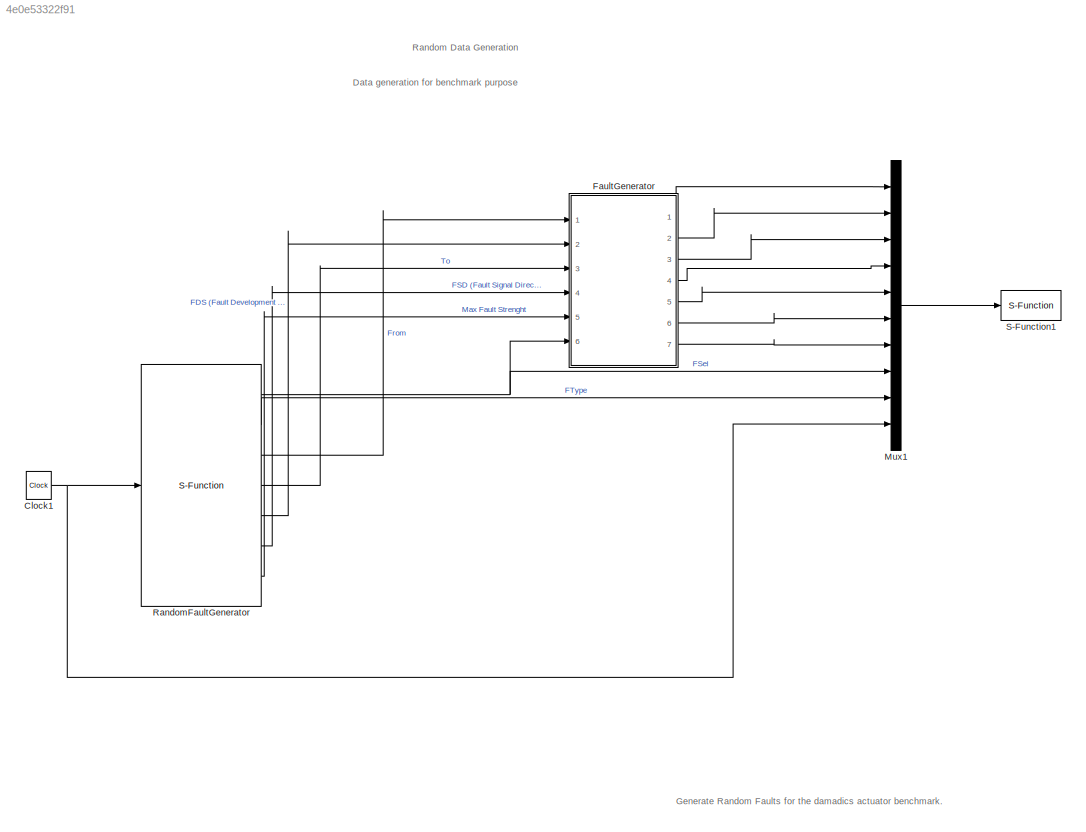
MODEL slx_4e0e53322f91
KIND model
CONFIG AbsTol = 1e-6
CONFIG EnableMultiTasking = off
CONFIG FixedStep = 0.0025
CONFIG MaxStep = auto
CONFIG MinStep = auto
CONFIG RelTol = 1e-3
CONFIG SampleTimeConstraint = Unconstrained
CONFIG Solver = ode5
CONFIG SolverName = ode5
CONFIG StartTime = 0.0
CONFIG StopTime = 10
BLOCK [Clock] Clock1
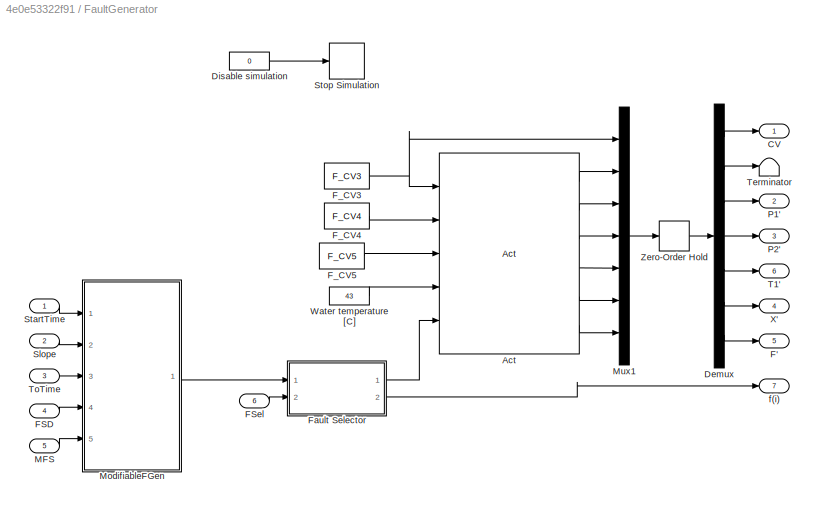
BLOCK [SubSystem] FaultGenerator
  Ports = [6, 7]
  RequestExecContextInheritance = off
  Variant = off
BLOCK [Reference] FaultGenerator/Act  REF=DABLib/Act
  Ports = [5, 6]
  SourceBlock = DABLib/Act
  SourceType = Actuator
BLOCK [Outport] FaultGenerator/CV
  IconDisplay = Port number
  InitialOutput = 0
BLOCK [Demux] FaultGenerator/Demux
  Outputs = 7
  Ports = [1, 7]
BLOCK [Constant] FaultGenerator/Disable simulation
  Value = 0
BLOCK [Outport] FaultGenerator/F'
  IconDisplay = Port number
  InitialOutput = 0
  Port = 5
BLOCK [Inport] FaultGenerator/FSD
  IconDisplay = Port number
  Port = 4
BLOCK [Inport] FaultGenerator/FSel
  IconDisplay = Port number
  Port = 6
BLOCK [Reference] FaultGenerator/F_CV3  REF=DABLib/DGen/F_CV3
  Ports = [0, 1]
  SourceBlock = DABLib/DGen/F_CV3
  SourceType = Sinus generator
BLOCK [Reference] FaultGenerator/F_CV4  REF=DABLib/DGen/F_CV4
  Ports = [0, 1]
  SourceBlock = DABLib/DGen/F_CV4
  SourceType = Sinus generator
BLOCK [Reference] FaultGenerator/F_CV5  REF=DABLib/DGen/F_CV5
  Ports = [0, 1]
  SourceBlock = DABLib/DGen/F_CV5
  SourceType = Sinus generator
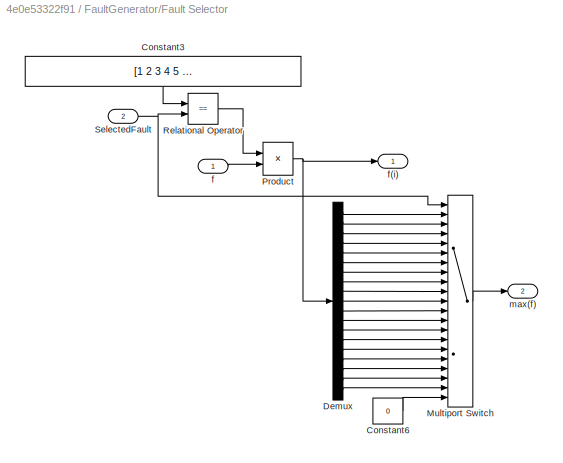
BLOCK [SubSystem] FaultGenerator/Fault Selector
  AncestorBlock = DABLib/DGen/Fault Selector
  Ports = [2, 2]
  RequestExecContextInheritance = off
  Variant = off
BLOCK [Constant] FaultGenerator/Fault Selector/Constant3
  Value = [1 2 3 4 5 6 7 8 9 10 11 12 13 14 15 16 17 18 19]
BLOCK [Constant] FaultGenerator/Fault Selector/Constant6
  Value = 0
BLOCK [Demux] FaultGenerator/Fault Selector/Demux
  Outputs = 19
  Ports = [1, 19]
BLOCK [MultiPortSwitch] FaultGenerator/Fault Selector/Multiport Switch
  Inputs = 20
  Ports = [21, 1]
BLOCK [Product] FaultGenerator/Fault Selector/Product
  Ports = [2, 1]
BLOCK [RelationalOperator] FaultGenerator/Fault Selector/Relational Operator
  Operator = ==
  Ports = [2, 1]
BLOCK [Inport] FaultGenerator/Fault Selector/SelectedFault
  IconDisplay = Port number
  Port = 2
BLOCK [Inport] FaultGenerator/Fault Selector/f
  IconDisplay = Port number
BLOCK [Outport] FaultGenerator/Fault Selector/f(i)
  IconDisplay = Port number
  InitialOutput = 0
BLOCK [Outport] FaultGenerator/Fault Selector/max(f)
  IconDisplay = Port number
  InitialOutput = 0
  Port = 2
BLOCK [Inport] FaultGenerator/MFS
  IconDisplay = Port number
  Port = 5
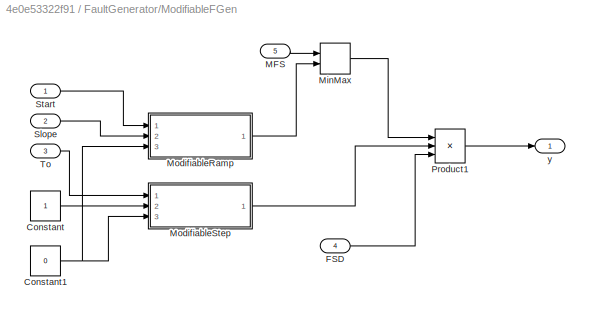
BLOCK [SubSystem] FaultGenerator/ModifiableFGen
  Ports = [5, 1]
  RequestExecContextInheritance = off
  Variant = off
BLOCK [Constant] FaultGenerator/ModifiableFGen/Constant
BLOCK [Constant] FaultGenerator/ModifiableFGen/Constant1
  Value = 0
BLOCK [Inport] FaultGenerator/ModifiableFGen/FSD
  IconDisplay = Port number
  Port = 4
BLOCK [Inport] FaultGenerator/ModifiableFGen/MFS
  IconDisplay = Port number
  Port = 5
BLOCK [MinMax] FaultGenerator/ModifiableFGen/MinMax
  InputSameDT = off
  Inputs = 2
  Ports = [2, 1]
  SaturateOnIntegerOverflow = off
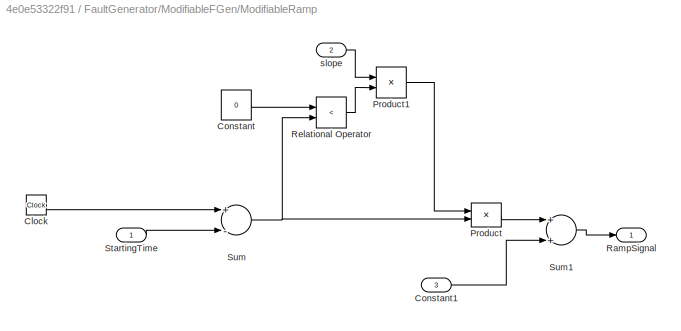
BLOCK [SubSystem] FaultGenerator/ModifiableFGen/ModifiableRamp
  Ports = [3, 1]
  RequestExecContextInheritance = off
  Variant = off
BLOCK [Clock] FaultGenerator/ModifiableFGen/ModifiableRamp/Clock
BLOCK [Constant] FaultGenerator/ModifiableFGen/ModifiableRamp/Constant
  Value = 0
BLOCK [Inport] FaultGenerator/ModifiableFGen/ModifiableRamp/Constant1
  IconDisplay = Port number
  Port = 3
BLOCK [Product] FaultGenerator/ModifiableFGen/ModifiableRamp/Product
  Ports = [2, 1]
BLOCK [Product] FaultGenerator/ModifiableFGen/ModifiableRamp/Product1
  InputSameDT = off
  OutDataTypeStr = Inherit: Inherit via internal rule
  Ports = [2, 1]
  RndMeth = Floor
  SaturateOnIntegerOverflow = off
BLOCK [Outport] FaultGenerator/ModifiableFGen/ModifiableRamp/RampSignal
  IconDisplay = Port number
BLOCK [RelationalOperator] FaultGenerator/ModifiableFGen/ModifiableRamp/Relational Operator
  InputSameDT = off
  Operator = <
  OutDataTypeStr = boolean
  Ports = [2, 1]
  RndMeth = Simplest
BLOCK [Inport] FaultGenerator/ModifiableFGen/ModifiableRamp/StartingTime
  IconDisplay = Port number
BLOCK [Sum] FaultGenerator/ModifiableFGen/ModifiableRamp/Sum
  Inputs = +-
  Ports = [2, 1]
BLOCK [Sum] FaultGenerator/ModifiableFGen/ModifiableRamp/Sum1
  Ports = [2, 1]
BLOCK [Inport] FaultGenerator/ModifiableFGen/ModifiableRamp/slope
  IconDisplay = Port number
  Port = 2
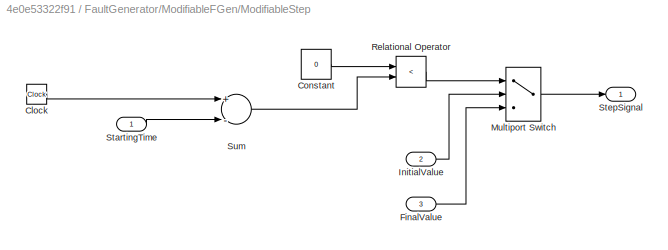
BLOCK [SubSystem] FaultGenerator/ModifiableFGen/ModifiableStep
  Ports = [3, 1]
  RequestExecContextInheritance = off
  Variant = off
BLOCK [Clock] FaultGenerator/ModifiableFGen/ModifiableStep/Clock
BLOCK [Constant] FaultGenerator/ModifiableFGen/ModifiableStep/Constant
  Value = 0
BLOCK [Inport] FaultGenerator/ModifiableFGen/ModifiableStep/FinalValue
  IconDisplay = Port number
  Port = 3
BLOCK [Inport] FaultGenerator/ModifiableFGen/ModifiableStep/InitialValue
  IconDisplay = Port number
  Port = 2
BLOCK [MultiPortSwitch] FaultGenerator/ModifiableFGen/ModifiableStep/Multiport Switch
  DataPortOrder = Zero-based contiguous
  InputSameDT = off
  Inputs = 2
  Ports = [3, 1]
  SaturateOnIntegerOverflow = off
BLOCK [RelationalOperator] FaultGenerator/ModifiableFGen/ModifiableStep/Relational Operator
  InputSameDT = off
  Operator = <
  OutDataTypeStr = boolean
  Ports = [2, 1]
  RndMeth = Simplest
BLOCK [Inport] FaultGenerator/ModifiableFGen/ModifiableStep/StartingTime
  IconDisplay = Port number
BLOCK [Outport] FaultGenerator/ModifiableFGen/ModifiableStep/StepSignal
  IconDisplay = Port number
BLOCK [Sum] FaultGenerator/ModifiableFGen/ModifiableStep/Sum
  Inputs = +-
  Ports = [2, 1]
BLOCK [Product] FaultGenerator/ModifiableFGen/Product1
  Inputs = 3
  Ports = [3, 1]
BLOCK [Inport] FaultGenerator/ModifiableFGen/Slope
  IconDisplay = Port number
  Port = 2
BLOCK [Inport] FaultGenerator/ModifiableFGen/Start
  IconDisplay = Port number
BLOCK [Inport] FaultGenerator/ModifiableFGen/To
  IconDisplay = Port number
  Port = 3
BLOCK [Outport] FaultGenerator/ModifiableFGen/y
  IconDisplay = Port number
  InitialOutput = 0
BLOCK [Mux] FaultGenerator/Mux1
  Inputs = 7
  Ports = [7, 1]
BLOCK [Outport] FaultGenerator/P1'
  IconDisplay = Port number
  InitialOutput = 0
  Port = 2
BLOCK [Outport] FaultGenerator/P2'
  IconDisplay = Port number
  InitialOutput = 0
  Port = 3
BLOCK [Inport] FaultGenerator/Slope
  IconDisplay = Port number
  Port = 2
BLOCK [Inport] FaultGenerator/StartTime
  IconDisplay = Port number
BLOCK [Stop] FaultGenerator/Stop Simulation
BLOCK [Outport] FaultGenerator/T1'
  IconDisplay = Port number
  InitialOutput = 0
  Port = 6
BLOCK [Terminator] FaultGenerator/Terminator
BLOCK [Inport] FaultGenerator/ToTime
  IconDisplay = Port number
  Port = 3
BLOCK [Constant] FaultGenerator/Water temperature [C] 
  Value = 43
BLOCK [Outport] FaultGenerator/X'
  IconDisplay = Port number
  InitialOutput = 0
  Port = 4
BLOCK [ZeroOrderHold] FaultGenerator/Zero-Order Hold
BLOCK [Outport] FaultGenerator/f(i)
  IconDisplay = Port number
  InitialOutput = 0
  Port = 7
BLOCK [Mux] Mux1
  Inputs = 10
  Ports = [10, 1]
BLOCK [S-Function] RandomFaultGenerator
  EnableBusSupport = off
  FunctionName = randomFaultGenerator
  Parameters = 5.85, 4.5
  Ports = [1, 7]
  SFcnIsStateOwnerBlock = off
  SFunctionDeploymentMode = off
BLOCK [S-Function] S-Function1
  EnableBusSupport = off
  FunctionName = saveToDB2
  Parameters = 'simulink@192.168.56.1 simulink damadics'
  Ports = [1]
  SFcnIsStateOwnerBlock = off
  SFunctionDeploymentMode = off
ANNOTATION (root): Data generation for benchmark purpose
ANNOTATION (root): Generate Random Faults for the damadics actuator benchmark.
ANNOTATION (root): Random Data Generation
NET Clock1:1 -> Mux1:10, RandomFaultGenerator:1
LINE FaultGenerator/Act:1 -> FaultGenerator/Mux1:2
LINE FaultGenerator/Act:2 -> FaultGenerator/Mux1:3
LINE FaultGenerator/Act:3 -> FaultGenerator/Mux1:4
LINE FaultGenerator/Act:4 -> FaultGenerator/Mux1:5
LINE FaultGenerator/Act:5 -> FaultGenerator/Mux1:6
LINE FaultGenerator/Act:6 -> FaultGenerator/Mux1:7
LINE FaultGenerator/Demux:1 -> FaultGenerator/CV:1
LINE FaultGenerator/Demux:2 -> FaultGenerator/Terminator:1
LINE FaultGenerator/Demux:3 -> FaultGenerator/P1':1
LINE FaultGenerator/Demux:4 -> FaultGenerator/P2':1
LINE FaultGenerator/Demux:5 -> FaultGenerator/T1':1
LINE FaultGenerator/Demux:6 -> FaultGenerator/X':1
LINE FaultGenerator/Demux:7 -> FaultGenerator/F':1
LINE FaultGenerator/Disable simulation:1 -> FaultGenerator/Stop Simulation:1
LINE FaultGenerator/FSD:1 -> FaultGenerator/ModifiableFGen:4
LINE FaultGenerator/FSel:1 -> FaultGenerator/Fault Selector:2
NET FaultGenerator/F_CV3:1 -> FaultGenerator/Act:1, FaultGenerator/Mux1:1
LINE FaultGenerator/F_CV4:1 -> FaultGenerator/Act:2
LINE FaultGenerator/F_CV5:1 -> FaultGenerator/Act:3
LINE FaultGenerator/Fault Selector:1 -> FaultGenerator/Act:5
LINE FaultGenerator/Fault Selector:2 -> FaultGenerator/f(i):1
LINE FaultGenerator/MFS:1 -> FaultGenerator/ModifiableFGen:5
NET FaultGenerator/ModifiableFGen/Constant1:1 -> FaultGenerator/ModifiableFGen/ModifiableRamp:3, FaultGenerator/ModifiableFGen/ModifiableStep:3
LINE FaultGenerator/ModifiableFGen/Constant:1 -> FaultGenerator/ModifiableFGen/ModifiableStep:2
LINE FaultGenerator/ModifiableFGen/FSD:1 -> FaultGenerator/ModifiableFGen/Product1:3
LINE FaultGenerator/ModifiableFGen/MFS:1 -> FaultGenerator/ModifiableFGen/MinMax:1
LINE FaultGenerator/ModifiableFGen/MinMax:1 -> FaultGenerator/ModifiableFGen/Product1:1
LINE FaultGenerator/ModifiableFGen/ModifiableRamp/Clock:1 -> FaultGenerator/ModifiableFGen/ModifiableRamp/Sum:1
LINE FaultGenerator/ModifiableFGen/ModifiableRamp/Constant1:1 -> FaultGenerator/ModifiableFGen/ModifiableRamp/Sum1:2
LINE FaultGenerator/ModifiableFGen/ModifiableRamp/Constant:1 -> FaultGenerator/ModifiableFGen/ModifiableRamp/Relational Operator:1
LINE FaultGenerator/ModifiableFGen/ModifiableRamp/Product1:1 -> FaultGenerator/ModifiableFGen/ModifiableRamp/Product:1
LINE FaultGenerator/ModifiableFGen/ModifiableRamp/Product:1 -> FaultGenerator/ModifiableFGen/ModifiableRamp/Sum1:1
LINE FaultGenerator/ModifiableFGen/ModifiableRamp/Relational Operator:1 -> FaultGenerator/ModifiableFGen/ModifiableRamp/Product1:2
LINE FaultGenerator/ModifiableFGen/ModifiableRamp/StartingTime:1 -> FaultGenerator/ModifiableFGen/ModifiableRamp/Sum:2
LINE FaultGenerator/ModifiableFGen/ModifiableRamp/Sum1:1 -> FaultGenerator/ModifiableFGen/ModifiableRamp/RampSignal:1
NET FaultGenerator/ModifiableFGen/ModifiableRamp/Sum:1 -> FaultGenerator/ModifiableFGen/ModifiableRamp/Product:2, FaultGenerator/ModifiableFGen/ModifiableRamp/Relational Operator:2
LINE FaultGenerator/ModifiableFGen/ModifiableRamp/slope:1 -> FaultGenerator/ModifiableFGen/ModifiableRamp/Product1:1
LINE FaultGenerator/ModifiableFGen/ModifiableRamp:1 -> FaultGenerator/ModifiableFGen/MinMax:2
LINE FaultGenerator/ModifiableFGen/ModifiableStep/Clock:1 -> FaultGenerator/ModifiableFGen/ModifiableStep/Sum:1
LINE FaultGenerator/ModifiableFGen/ModifiableStep/Constant:1 -> FaultGenerator/ModifiableFGen/ModifiableStep/Relational Operator:1
LINE FaultGenerator/ModifiableFGen/ModifiableStep/FinalValue:1 -> FaultGenerator/ModifiableFGen/ModifiableStep/Multiport Switch:3
LINE FaultGenerator/ModifiableFGen/ModifiableStep/InitialValue:1 -> FaultGenerator/ModifiableFGen/ModifiableStep/Multiport Switch:2
LINE FaultGenerator/ModifiableFGen/ModifiableStep/Multiport Switch:1 -> FaultGenerator/ModifiableFGen/ModifiableStep/StepSignal:1
LINE FaultGenerator/ModifiableFGen/ModifiableStep/Relational Operator:1 -> FaultGenerator/ModifiableFGen/ModifiableStep/Multiport Switch:1
LINE FaultGenerator/ModifiableFGen/ModifiableStep/StartingTime:1 -> FaultGenerator/ModifiableFGen/ModifiableStep/Sum:2
LINE FaultGenerator/ModifiableFGen/ModifiableStep/Sum:1 -> FaultGenerator/ModifiableFGen/ModifiableStep/Relational Operator:2
LINE FaultGenerator/ModifiableFGen/ModifiableStep:1 -> FaultGenerator/ModifiableFGen/Product1:2
LINE FaultGenerator/ModifiableFGen/Product1:1 -> FaultGenerator/ModifiableFGen/y:1
LINE FaultGenerator/ModifiableFGen/Slope:1 -> FaultGenerator/ModifiableFGen/ModifiableRamp:2
LINE FaultGenerator/ModifiableFGen/Start:1 -> FaultGenerator/ModifiableFGen/ModifiableRamp:1
LINE FaultGenerator/ModifiableFGen/To:1 -> FaultGenerator/ModifiableFGen/ModifiableStep:1
LINE FaultGenerator/ModifiableFGen:1 -> FaultGenerator/Fault Selector:1
LINE FaultGenerator/Mux1:1 -> FaultGenerator/Zero-Order Hold:1
LINE FaultGenerator/Slope:1 -> FaultGenerator/ModifiableFGen:2
LINE FaultGenerator/StartTime:1 -> FaultGenerator/ModifiableFGen:1
LINE FaultGenerator/ToTime:1 -> FaultGenerator/ModifiableFGen:3
LINE FaultGenerator/Water temperature [C] :1 -> FaultGenerator/Act:4
LINE FaultGenerator/Zero-Order Hold:1 -> FaultGenerator/Demux:1
LINE FaultGenerator:1 -> Mux1:1
LINE FaultGenerator:2 -> Mux1:2
LINE FaultGenerator:3 -> Mux1:3
LINE FaultGenerator:4 -> Mux1:4
LINE FaultGenerator:5 -> Mux1:5
LINE FaultGenerator:6 -> Mux1:6
LINE FaultGenerator:7 -> Mux1:7
LINE Mux1:1 -> S-Function1:1
NET RandomFaultGenerator:1 -> FaultGenerator:6, Mux1:8
LINE RandomFaultGenerator:2 -> Mux1:9
LINE RandomFaultGenerator:3 -> FaultGenerator:1
LINE RandomFaultGenerator:4 -> FaultGenerator:3
LINE RandomFaultGenerator:5 -> FaultGenerator:2
LINE RandomFaultGenerator:6 -> FaultGenerator:4
LINE RandomFaultGenerator:7 -> FaultGenerator:5
note: NET lines group one-source signal fan-out (src -> all destinations, sorted); 1:1 wires keep LINE
